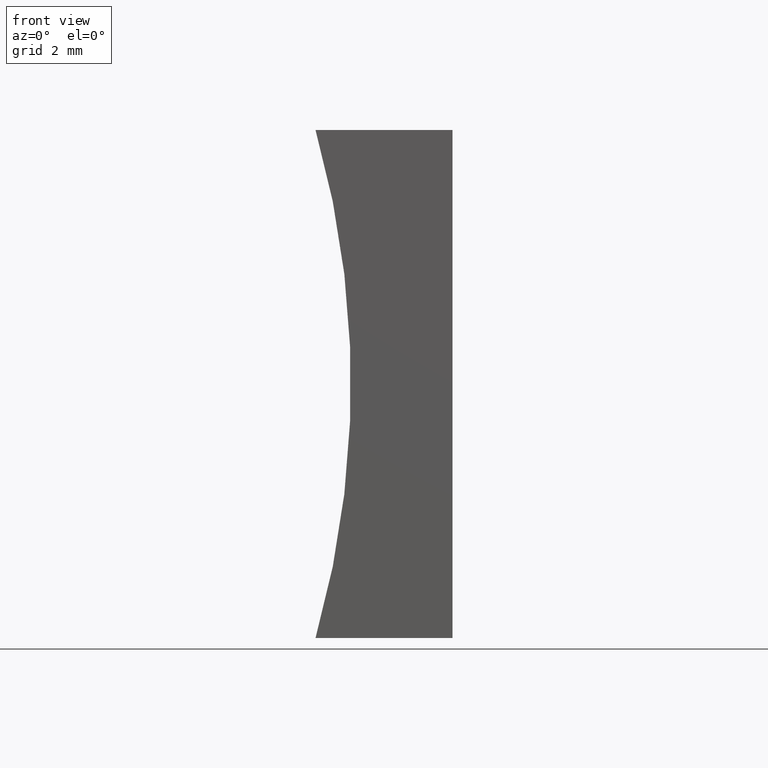
[diagram: clean part render]
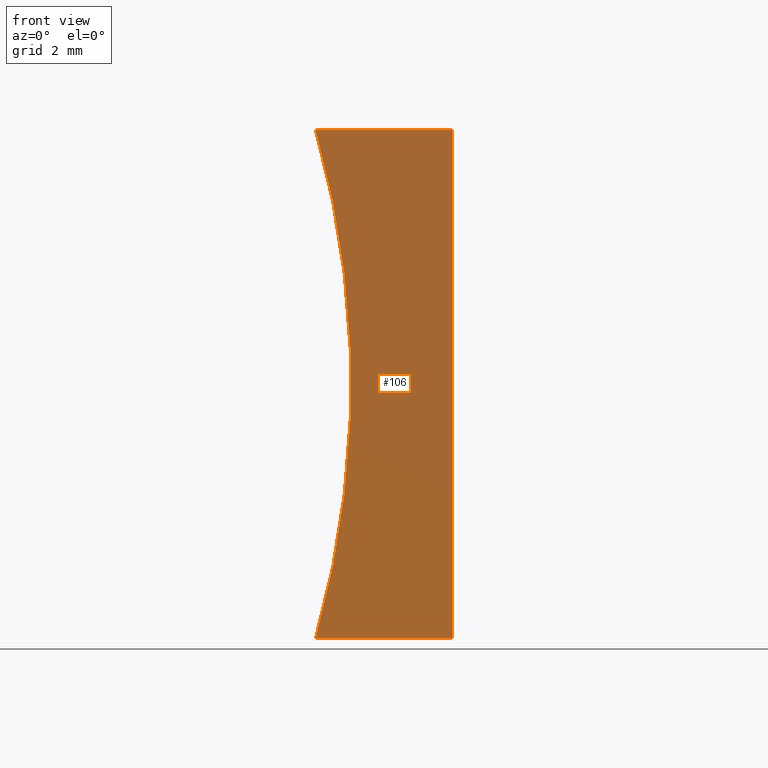
[diagram: same view with one face highlighted and labeled with its STEP entity id]
A machine part, front view. The second image highlights one B-rep face of the part: STEP entity #106.
In plain terms, the highlighted planar face has unit normal (0, 1, 0).
Its self-contained STEP definition (entity closure, byte-faithful):
#11 = FACE_OUTER_BOUND ( 'NONE', #144, .T. ) ;
#14 = CARTESIAN_POINT ( 'NONE',  ( 0.0000000000000000000, 0.0000000000000000000, 0.0000000000000000000 ) ) ;
#21 = EDGE_CURVE ( 'NONE', #105, #129, #203, .T. ) ;
#34 = PLANE ( 'NONE',  #115 ) ;
#36 = CARTESIAN_POINT ( 'NONE',  ( 0.0000000000000000000, 0.0000000000000000000, 0.0000000000000000000 ) ) ;
#43 = VECTOR ( 'NONE', #174, 1000.000000000000000 ) ;
#44 = AXIS2_PLACEMENT_3D ( 'NONE', #47, #161, #201 ) ;
#47 = CARTESIAN_POINT ( 'NONE',  ( -20.31999999999999700, 0.0000000000000000000, 5.000000000000000000 ) ) ;
#56 = CIRCLE ( 'NONE', #44, 18.31999999999999700 ) ;
#61 = CARTESIAN_POINT ( 'NONE',  ( -20.31999999999999700, 0.0000000000000000000, 5.000000000000000000 ) ) ;
#66 = VERTEX_POINT ( 'NONE', #131 ) ;
#67 = CARTESIAN_POINT ( 'NONE',  ( -2.695517028860110000, 0.0000000000000000000, 8.673617379884035500E-016 ) ) ;
#73 = LINE ( 'NONE', #36, #43 ) ;
#78 = LINE ( 'NONE', #154, #82 ) ;
#82 = VECTOR ( 'NONE', #175, 1000.000000000000000 ) ;
#83 = ORIENTED_EDGE ( 'NONE', *, *, #139, .F. ) ;
#95 = DIRECTION ( 'NONE',  ( 0.0000000000000000000, -0.0000000000000000000, 1.000000000000000000 ) ) ;
#103 = ORIENTED_EDGE ( 'NONE', *, *, #199, .F. ) ;
#105 = VERTEX_POINT ( 'NONE', #196 ) ;
#106 = ADVANCED_FACE ( 'NONE', ( #11 ), #34, .F. ) ;
#110 = DIRECTION ( 'NONE',  ( 0.0000000000000000000, 1.000000000000000000, 0.0000000000000000000 ) ) ;
#114 = ORIENTED_EDGE ( 'NONE', *, *, #167, .F. ) ;
#115 = AXIS2_PLACEMENT_3D ( 'NONE', #61, #110, #95 ) ;
#117 = VERTEX_POINT ( 'NONE', #67 ) ;
#122 = DIRECTION ( 'NONE',  ( -6.123233995736766000E-017, -0.0000000000000000000, -1.000000000000000000 ) ) ;
#129 = VERTEX_POINT ( 'NONE', #14 ) ;
#131 = CARTESIAN_POINT ( 'NONE',  ( -2.695517028860108200, 0.0000000000000000000, 10.00000000000000200 ) ) ;
#139 = EDGE_CURVE ( 'NONE', #129, #117, #73, .T. ) ;
#144 = EDGE_LOOP ( 'NONE', ( #83, #198, #103, #114 ) ) ;
#145 = VECTOR ( 'NONE', #122, 1000.000000000000000 ) ;
#154 = CARTESIAN_POINT ( 'NONE',  ( 6.123233995736766300E-016, 0.0000000000000000000, 10.00000000000000000 ) ) ;
#161 = DIRECTION ( 'NONE',  ( -0.0000000000000000000, -1.000000000000000000, -0.0000000000000000000 ) ) ;
#167 = EDGE_CURVE ( 'NONE', #117, #66, #56, .T. ) ;
#174 = DIRECTION ( 'NONE',  ( -1.000000000000000000, 0.0000000000000000000, 1.430855114987436600E-016 ) ) ;
#175 = DIRECTION ( 'NONE',  ( 1.000000000000000000, -0.0000000000000000000, -6.435587152311161100E-016 ) ) ;
#176 = CARTESIAN_POINT ( 'NONE',  ( 0.0000000000000000000, 0.0000000000000000000, 0.0000000000000000000 ) ) ;
#196 = CARTESIAN_POINT ( 'NONE',  ( 6.123233995736766300E-016, 0.0000000000000000000, 10.00000000000000000 ) ) ;
#198 = ORIENTED_EDGE ( 'NONE', *, *, #21, .F. ) ;
#199 = EDGE_CURVE ( 'NONE', #66, #105, #78, .T. ) ;
#201 = DIRECTION ( 'NONE',  ( 0.0000000000000000000, 0.0000000000000000000, 1.000000000000000000 ) ) ;
#203 = LINE ( 'NONE', #176, #145 ) ;